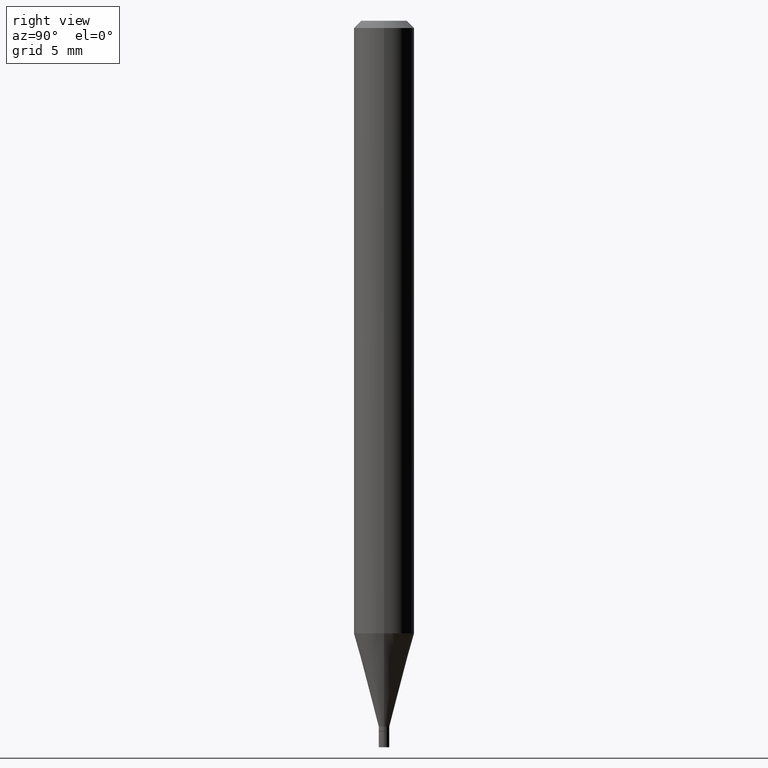
[diagram: clean part render]
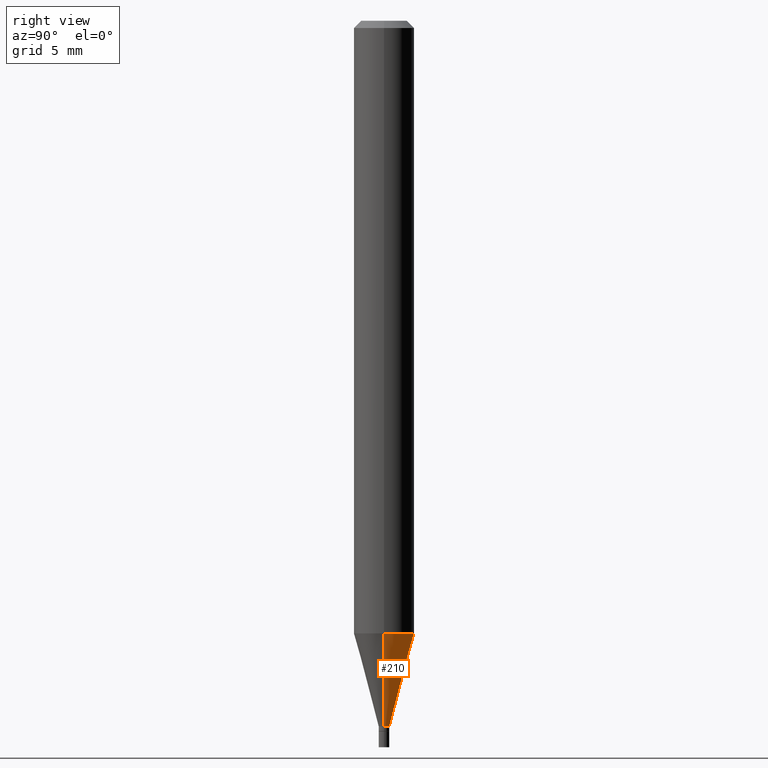
[diagram: same view with one face highlighted and labeled with its STEP entity id]
A machine part, right view. The second image highlights one B-rep face of the part: STEP entity #210.
In plain terms, the highlighted conical surface has half-angle 15 deg.
Its self-contained STEP definition (entity closure, byte-faithful):
#35 = CONICAL_SURFACE ( 'NONE', #161, 0.01099999999999992130, 0.2617993877991500740 ) ;
#39 = CARTESIAN_POINT ( 'NONE',  ( 3.563048050611744147E-29, -5.087088310694462559E-15, -1.457000000000000073 ) ) ;
#59 = VERTEX_POINT ( 'NONE', #147 ) ;
#90 = EDGE_CURVE ( 'NONE', #273, #59, #341, .T. ) ;
#93 = DIRECTION ( 'NONE',  ( 1.000000000000000000, -6.982962677686295110E-15, 0.000000000000000000 ) ) ;
#98 = VERTEX_POINT ( 'NONE', #440 ) ;
#116 = EDGE_LOOP ( 'NONE', ( #216, #145, #284, #395 ) ) ;
#120 = CARTESIAN_POINT ( 'NONE',  ( 3.563048050611744147E-29, -5.087088310694462559E-15, -1.457000000000000073 ) ) ;
#127 = AXIS2_PLACEMENT_3D ( 'NONE', #302, #157, #193 ) ;
#145 = ORIENTED_EDGE ( 'NONE', *, *, #301, .T. ) ;
#147 = CARTESIAN_POINT ( 'NONE',  ( 0.06250000000000000000, -4.852458611912431766E-15, -1.264799383410203149 ) ) ;
#155 = VERTEX_POINT ( 'NONE', #442 ) ;
#157 = DIRECTION ( 'NONE',  ( -2.445468806185136597E-29, 3.491481338843145583E-15, 1.000000000000000000 ) ) ;
#158 = EDGE_CURVE ( 'NONE', #59, #155, #166, .T. ) ;
#161 = AXIS2_PLACEMENT_3D ( 'NONE', #120, #232, #93 ) ;
#166 = CIRCLE ( 'NONE', #127, 0.06250000000000000000 ) ;
#167 = AXIS2_PLACEMENT_3D ( 'NONE', #39, #187, #288 ) ;
#187 = DIRECTION ( 'NONE',  ( -2.445468806185136597E-29, 3.491481338843145583E-15, 1.000000000000000000 ) ) ;
#193 = DIRECTION ( 'NONE',  ( 1.000000000000000000, -6.982962677686262766E-15, 0.000000000000000000 ) ) ;
#210 = ADVANCED_FACE ( 'NONE', ( #407 ), #35, .T. ) ;
#216 = ORIENTED_EDGE ( 'NONE', *, *, #401, .T. ) ;
#218 = CARTESIAN_POINT ( 'NONE',  ( -0.01099999999999992130, -5.008928609760852258E-15, -1.457000000000000073 ) ) ;
#223 = DIRECTION ( 'NONE',  ( -0.2588190451025213501, 5.211531920934551042E-15, 0.9659258262890682012 ) ) ;
#232 = DIRECTION ( 'NONE',  ( -2.445468806185136597E-29, 3.491481338843145583E-15, 1.000000000000000000 ) ) ;
#273 = VERTEX_POINT ( 'NONE', #388 ) ;
#284 = ORIENTED_EDGE ( 'NONE', *, *, #158, .F. ) ;
#288 = DIRECTION ( 'NONE',  ( 1.000000000000000000, -6.982962677686295110E-15, 0.000000000000000000 ) ) ;
#301 = EDGE_CURVE ( 'NONE', #98, #155, #435, .T. ) ;
#302 = CARTESIAN_POINT ( 'NONE',  ( 3.093027438211846075E-29, -4.416023444557040885E-15, -1.264799383410203149 ) ) ;
#303 = CARTESIAN_POINT ( 'NONE',  ( 0.01099999999999992130, -5.163900900149011871E-15, -1.457000000000000073 ) ) ;
#341 = LINE ( 'NONE', #303, #462 ) ;
#388 = CARTESIAN_POINT ( 'NONE',  ( 0.01099999999999992130, -5.163900900149011871E-15, -1.457000000000000073 ) ) ;
#395 = ORIENTED_EDGE ( 'NONE', *, *, #90, .F. ) ;
#401 = EDGE_CURVE ( 'NONE', #273, #98, #446, .T. ) ;
#406 = VECTOR ( 'NONE', #223, 39.37007874015747433 ) ;
#407 = FACE_OUTER_BOUND ( 'NONE', #116, .T. ) ;
#435 = LINE ( 'NONE', #218, #406 ) ;
#440 = CARTESIAN_POINT ( 'NONE',  ( -0.01099999999999992130, -4.490431422233914869E-15, -1.457000000000000073 ) ) ;
#442 = CARTESIAN_POINT ( 'NONE',  ( -0.06250000000000000000, -3.971934234706977480E-15, -1.264799383410203149 ) ) ;
#445 = DIRECTION ( 'NONE',  ( 0.2588190451025213501, 1.565188264969621968E-15, 0.9659258262890682012 ) ) ;
#446 = CIRCLE ( 'NONE', #167, 0.01099999999999992130 ) ;
#462 = VECTOR ( 'NONE', #445, 39.37007874015747433 ) ;